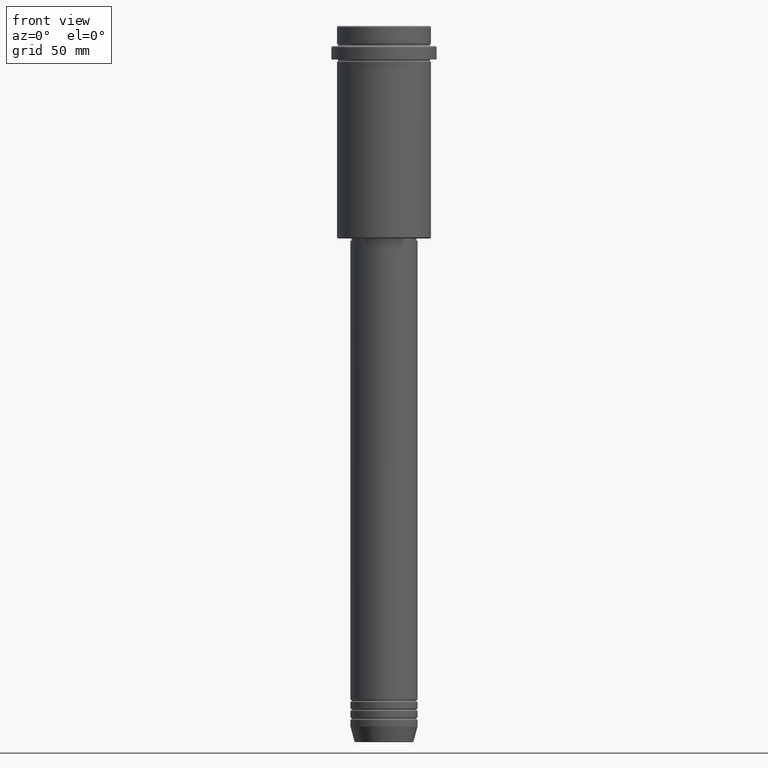
[diagram: clean part render]
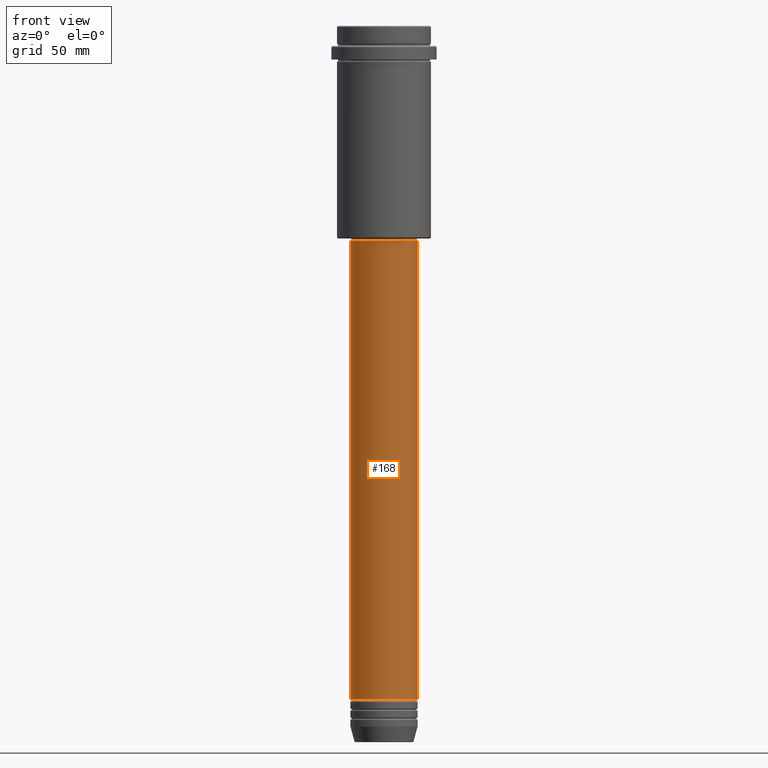
[diagram: same view with one face highlighted and labeled with its STEP entity id]
A machine part, front view. The second image highlights one B-rep face of the part: STEP entity #168.
In plain terms, the highlighted cylindrical surface (edge-blend (fillet) strip) has radius 15 mm, axis along (-0, -0, 1).
Its self-contained STEP definition (entity closure, byte-faithful):
#8 = EDGE_CURVE ( 'NONE', #1273, #284, #828, .T. ) ;
#56 = CARTESIAN_POINT ( 'NONE',  ( -15.00000000000000000, 1.836970198721029589E-15, 0.000000000000000000 ) ) ;
#107 = ORIENTED_EDGE ( 'NONE', *, *, #1382, .T. ) ;
#137 = DIRECTION ( 'NONE',  ( -0.000000000000000000, -0.000000000000000000, 1.000000000000000000 ) ) ;
#168 = ADVANCED_FACE ( 'NONE', ( #948 ), #296, .T. ) ;
#180 = CARTESIAN_POINT ( 'NONE',  ( -15.00000000000000000, 1.836970198721029589E-15, -95.99999999999991473 ) ) ;
#212 = CARTESIAN_POINT ( 'NONE',  ( 0.000000000000000000, 0.000000000000000000, -95.99999999999991473 ) ) ;
#237 = CARTESIAN_POINT ( 'NONE',  ( 15.00000000000000000, 0.000000000000000000, -95.99999999999991473 ) ) ;
#240 = VERTEX_POINT ( 'NONE', #351 ) ;
#284 = VERTEX_POINT ( 'NONE', #237 ) ;
#296 = CYLINDRICAL_SURFACE ( 'NONE', #588, 15.00000000000000000 ) ;
#326 = ORIENTED_EDGE ( 'NONE', *, *, #1282, .F. ) ;
#351 = CARTESIAN_POINT ( 'NONE',  ( -15.00000000000000000, 1.836970198721029589E-15, -300.9999999999998863 ) ) ;
#400 = CIRCLE ( 'NONE', #1008, 15.00000000000000000 ) ;
#416 = VECTOR ( 'NONE', #1044, 1000.000000000000000 ) ;
#588 = AXIS2_PLACEMENT_3D ( 'NONE', #1390, #852, #649 ) ;
#649 = DIRECTION ( 'NONE',  ( 1.000000000000000000, 0.000000000000000000, 0.000000000000000000 ) ) ;
#650 = VERTEX_POINT ( 'NONE', #180 ) ;
#693 = LINE ( 'NONE', #56, #1156 ) ;
#769 = EDGE_CURVE ( 'NONE', #650, #284, #1154, .T. ) ;
#803 = CARTESIAN_POINT ( 'NONE',  ( 15.00000000000000000, 0.000000000000000000, -300.9999999999998863 ) ) ;
#828 = LINE ( 'NONE', #1054, #416 ) ;
#852 = DIRECTION ( 'NONE',  ( -0.000000000000000000, -0.000000000000000000, 1.000000000000000000 ) ) ;
#908 = DIRECTION ( 'NONE',  ( 1.000000000000000000, 0.000000000000000000, 0.000000000000000000 ) ) ;
#930 = DIRECTION ( 'NONE',  ( -0.000000000000000000, -0.000000000000000000, 1.000000000000000000 ) ) ;
#948 = FACE_OUTER_BOUND ( 'NONE', #1016, .T. ) ;
#1008 = AXIS2_PLACEMENT_3D ( 'NONE', #1118, #1140, #908 ) ;
#1014 = DIRECTION ( 'NONE',  ( 1.000000000000000000, 0.000000000000000000, 0.000000000000000000 ) ) ;
#1016 = EDGE_LOOP ( 'NONE', ( #326, #107, #1085, #1192 ) ) ;
#1044 = DIRECTION ( 'NONE',  ( -0.000000000000000000, -0.000000000000000000, 1.000000000000000000 ) ) ;
#1054 = CARTESIAN_POINT ( 'NONE',  ( 15.00000000000000000, 0.000000000000000000, 0.000000000000000000 ) ) ;
#1085 = ORIENTED_EDGE ( 'NONE', *, *, #8, .T. ) ;
#1108 = AXIS2_PLACEMENT_3D ( 'NONE', #212, #137, #1014 ) ;
#1118 = CARTESIAN_POINT ( 'NONE',  ( 0.000000000000000000, 0.000000000000000000, -300.9999999999998863 ) ) ;
#1140 = DIRECTION ( 'NONE',  ( -0.000000000000000000, -0.000000000000000000, 1.000000000000000000 ) ) ;
#1154 = CIRCLE ( 'NONE', #1108, 15.00000000000000000 ) ;
#1156 = VECTOR ( 'NONE', #930, 1000.000000000000000 ) ;
#1192 = ORIENTED_EDGE ( 'NONE', *, *, #769, .F. ) ;
#1273 = VERTEX_POINT ( 'NONE', #803 ) ;
#1282 = EDGE_CURVE ( 'NONE', #240, #650, #693, .T. ) ;
#1382 = EDGE_CURVE ( 'NONE', #240, #1273, #400, .T. ) ;
#1390 = CARTESIAN_POINT ( 'NONE',  ( 0.000000000000000000, 0.000000000000000000, 0.000000000000000000 ) ) ;